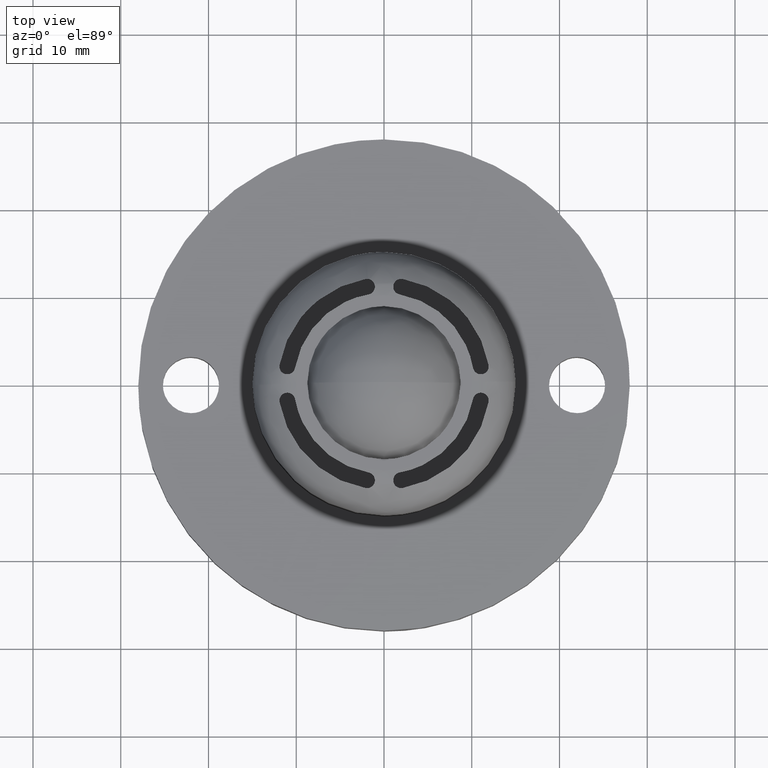
[diagram: clean part render]
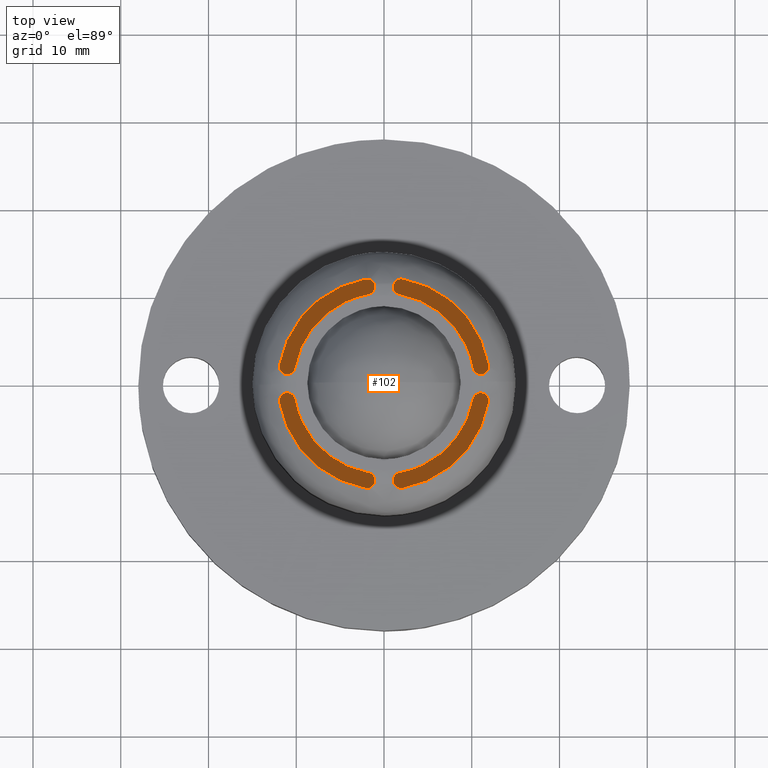
[diagram: same view with one face highlighted and labeled with its STEP entity id]
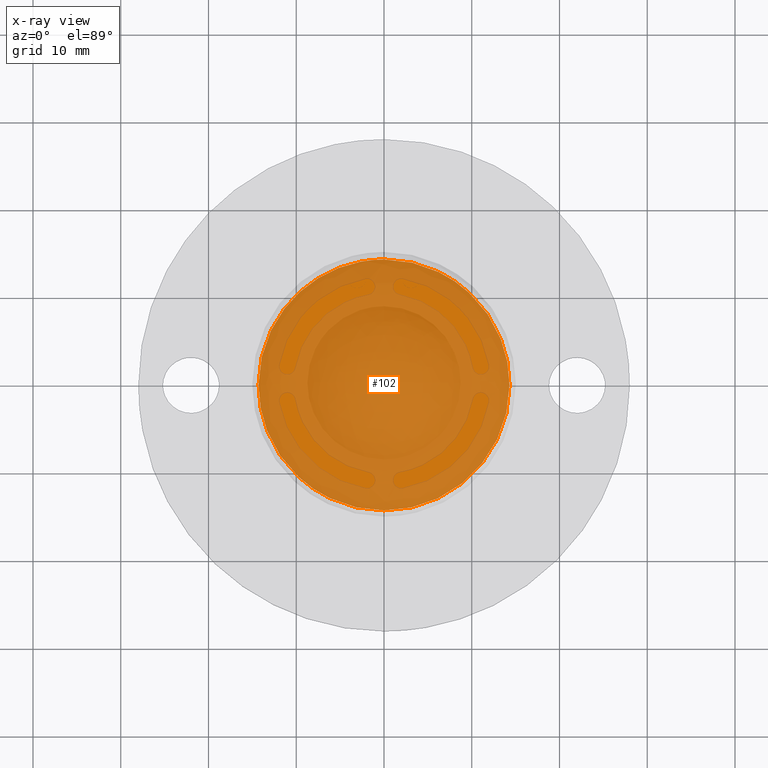
[diagram: x-ray of the same camera — body ghosted, the highlighted face saturated]
A machine part, top view. The second image highlights one B-rep face of the part: STEP entity #102.
The next image is the same camera in x-ray: the body ghosted, the highlighted face saturated — about 83% of this face is hidden behind the body in this view.
In plain terms, the highlighted face is a freeform B-spline surface patch.
Its self-contained STEP definition (entity closure, byte-faithful):
#5=CARTESIAN_POINT('',(15.728569944567321,-15.728569944567321,6.000000000000070));
#6=CARTESIAN_POINT('',(-15.728570711679099,-15.728569944567321,6.000000000000070));
#7=CARTESIAN_POINT('',(15.728569944567321,15.728570711679090,6.000000000000070));
#8=CARTESIAN_POINT('',(-15.728570711679099,15.728570711679090,6.000000000000070));
#9=B_SPLINE_SURFACE_WITH_KNOTS('',1,1,((#5,#7),(#6,#8)),.UNSPECIFIED.,.F.,.F.,.U.,(2,2),(2,2),(0.0,31.457140656246420),(0.0,31.457140656246409),.UNSPECIFIED.);
#10=CARTESIAN_POINT('',(-9.712347651176639,-10.495728028405139,6.000000000000091));
#11=VERTEX_POINT('',#10);
#12=CARTESIAN_POINT('',(-14.299999999999701,0.0,6.000000000000091));
#13=VERTEX_POINT('',#12);
#14=CARTESIAN_POINT('',(-9.712347651176639,-10.495728028405139,6.000000000000091));
#15=CARTESIAN_POINT('',(-10.162879421995070,-10.078847607861819,6.000000000000099));
#16=CARTESIAN_POINT('',(-11.031321590507240,-9.164649296583946,6.000000000000076));
#17=CARTESIAN_POINT('',(-12.296093052905681,-7.421959986089083,6.000000000000096));
#18=CARTESIAN_POINT('',(-13.322636842641661,-5.384981262749389,6.000000000000084));
#19=CARTESIAN_POINT('',(-14.104237542271520,-2.823481034652033,6.000000000000083));
#20=CARTESIAN_POINT('',(-14.300200717039470,-1.043503643734479,6.000000000000099));
#21=CARTESIAN_POINT('',(-14.299999999999701,0.0,6.000000000000091));
#22=B_SPLINE_CURVE_WITH_KNOTS('',3,(#14,#15,#16,#17,#18,#19,#20,#21),.UNSPECIFIED.,.F.,.U.,(4,1,1,1,1,4),(0.000000013052444,1.841444662456269,3.774979316731391,6.445075786953984,8.654819179867785,11.785286344685961),.UNSPECIFIED.);
#23=EDGE_CURVE('',#11,#13,#22,.T.);
#24=ORIENTED_EDGE('',*,*,#23,.F.);
#25=CARTESIAN_POINT('',(-0.000000525152832,-14.299999999999690,6.000000000000091));
#26=VERTEX_POINT('',#25);
#27=CARTESIAN_POINT('',(-0.000000525152832,-14.299999999999690,6.000000000000091));
#28=CARTESIAN_POINT('',(-0.917573282483773,-14.300101499111010,6.000000000000110));
#29=CARTESIAN_POINT('',(-2.446809392577613,-14.152292556962740,6.000000000000025));
#30=CARTESIAN_POINT('',(-4.414119998947976,-13.635923783584360,6.000000000000172));
#31=CARTESIAN_POINT('',(-6.073354379958099,-12.986016621188330,6.000000000000038));
#32=CARTESIAN_POINT('',(-7.863077314411433,-12.018007164946090,6.000000000000076));
#33=CARTESIAN_POINT('',(-9.079755808383320,-11.081219920251471,6.000000000000161));
#34=CARTESIAN_POINT('',(-9.712347651176639,-10.495728028405139,6.000000000000091));
#35=B_SPLINE_CURVE_WITH_KNOTS('',3,(#27,#28,#29,#30,#31,#32,#33,#34),.UNSPECIFIED.,.F.,.U.,(4,1,1,1,1,4),(0.000000010414404,2.752699450255091,4.587842957824215,6.089293252947494,8.091267545227501,10.677136200359151),.UNSPECIFIED.);
#36=EDGE_CURVE('',#26,#11,#35,.T.);
#37=ORIENTED_EDGE('',*,*,#36,.F.);
#38=CARTESIAN_POINT('',(14.299999999999701,0.0,6.000000000000091));
#39=VERTEX_POINT('',#38);
#40=CARTESIAN_POINT('',(14.299999999999701,0.0,6.000000000000091));
#41=CARTESIAN_POINT('',(14.300020251049871,-0.643449886064511,6.000000000000075));
#42=CARTESIAN_POINT('',(14.207072105615230,-2.018094110817895,6.000000000000109));
#43=CARTESIAN_POINT('',(13.714114829329640,-4.312471873056986,6.000000000000084));
#44=CARTESIAN_POINT('',(12.798455525810750,-6.542441901983058,6.000000000000067));
#45=CARTESIAN_POINT('',(11.700011249776949,-8.276785826671512,6.000000000000152));
#46=CARTESIAN_POINT('',(10.598405794812750,-9.644606837401920,6.000000000000117));
#47=CARTESIAN_POINT('',(9.433815966381193,-10.802086820986920,6.000000000000018));
#48=CARTESIAN_POINT('',(8.104540581581208,-11.813426340475640,6.000000000000121));
#49=CARTESIAN_POINT('',(6.753609590701603,-12.634434016744271,6.000000000000109));
#50=CARTESIAN_POINT('',(5.058317254134202,-13.436394448220019,6.000000000000228));
#51=CARTESIAN_POINT('',(2.749262229839114,-14.121316268966170,5.999999999999652));
#52=CARTESIAN_POINT('',(0.935940702007310,-14.300126043135171,6.000000000000436));
#53=CARTESIAN_POINT('',(-0.000000525152832,-14.299999999999690,6.000000000000091));
#54=B_SPLINE_CURVE_WITH_KNOTS('',3,(#40,#41,#42,#43,#44,#45,#46,#47,#48,#49,#50,#51,#52,#53),.UNSPECIFIED.,.F.,.U.,(4,1,1,1,1,1,1,1,1,1,1,4),(0.000000043469601,1.930352501267038,4.123956115908683,7.019515504626323,9.125366822881944,10.266051776653489,12.284130896196530,14.039011209367700,15.267426820802140,17.022305552835679,19.654623322496409,22.462423006119050),.UNSPECIFIED.);
#55=EDGE_CURVE('',#39,#26,#54,.T.);
#56=ORIENTED_EDGE('',*,*,#55,.F.);
#57=CARTESIAN_POINT('',(9.712347651176691,10.495728028405191,6.000000000000091));
#58=VERTEX_POINT('',#57);
#59=CARTESIAN_POINT('',(9.712347651176691,10.495728028405191,6.000000000000091));
#60=CARTESIAN_POINT('',(10.230474928603840,10.016328690882681,6.000000000000098));
#61=CARTESIAN_POINT('',(11.132550958017109,9.048111264606304,6.000000000000088));
#62=CARTESIAN_POINT('',(12.174516586901410,7.562587290762105,6.000000000000084));
#63=CARTESIAN_POINT('',(12.949329494124180,6.129909624823655,6.000000000000111));
#64=CARTESIAN_POINT('',(13.603018906640539,4.537604813820308,6.000000000000084));
#65=CARTESIAN_POINT('',(14.150527138210240,2.485931266530004,6.000000000000095));
#66=CARTESIAN_POINT('',(14.300085169431510,0.890036255439078,6.000000000000092));
#67=CARTESIAN_POINT('',(14.299999999999701,0.0,6.000000000000091));
#68=B_SPLINE_CURVE_WITH_KNOTS('',3,(#59,#60,#61,#62,#63,#64,#65,#66,#67),.UNSPECIFIED.,.F.,.U.,(4,1,1,1,1,1,4),(0.000000013052748,2.117663875192770,3.959122260484900,5.432293735658004,6.997510296963787,9.115184009026478,11.785286344685989),.UNSPECIFIED.);
#69=EDGE_CURVE('',#58,#39,#68,.T.);
#70=ORIENTED_EDGE('',*,*,#69,.F.);
#71=CARTESIAN_POINT('',(0.000000525153124,14.299999999999690,6.000000000000091));
#72=VERTEX_POINT('',#71);
#73=CARTESIAN_POINT('',(0.000000525153124,14.299999999999690,6.000000000000091));
#74=CARTESIAN_POINT('',(0.750736739628179,14.300048481155439,6.000000000000098));
#75=CARTESIAN_POINT('',(2.113169660685956,14.192455994764710,6.000000000000069));
#76=CARTESIAN_POINT('',(4.097353014082248,13.745303215111321,6.000000000000092));
#77=CARTESIAN_POINT('',(5.847872276893430,13.094722565745830,6.000000000000133));
#78=CARTESIAN_POINT('',(7.792667299649753,12.064697016130189,6.000000000000014));
#79=CARTESIAN_POINT('',(9.018562885570155,11.137920920930560,6.000000000000130));
#80=CARTESIAN_POINT('',(9.712347651176691,10.495728028405191,6.000000000000091));
#81=B_SPLINE_CURVE_WITH_KNOTS('',3,(#73,#74,#75,#76,#77,#78,#79,#80),.UNSPECIFIED.,.F.,.U.,(4,1,1,1,1,4),(0.000000010415725,2.252206048876529,4.087345557603253,6.089293252947401,7.841021205751505,10.677136200358900),.UNSPECIFIED.);
#82=EDGE_CURVE('',#72,#58,#81,.T.);
#83=ORIENTED_EDGE('',*,*,#82,.F.);
#84=CARTESIAN_POINT('',(-14.299999999999701,0.0,6.000000000000091));
#85=CARTESIAN_POINT('',(-14.300099892406999,0.877438812498670,6.000000000000100));
#86=CARTESIAN_POINT('',(-14.159547658026280,2.398288601428360,6.000000000000087));
#87=CARTESIAN_POINT('',(-13.561238533635510,4.726450166630754,6.000000000000108));
#88=CARTESIAN_POINT('',(-12.692639889262550,6.718866256936191,6.000000000000067));
#89=CARTESIAN_POINT('',(-11.441633513489609,8.667768068607090,6.000000000000090));
#90=CARTESIAN_POINT('',(-9.853117926576989,10.475587786226191,6.000000000000148));
#91=CARTESIAN_POINT('',(-7.934127355219138,11.982646874757300,6.000000000000076));
#92=CARTESIAN_POINT('',(-5.997848466105453,13.025121645295769,6.000000000000087));
#93=CARTESIAN_POINT('',(-4.355841919533587,13.652728025899849,6.000000000000100));
#94=CARTESIAN_POINT('',(-2.398282028073090,14.155891111635199,6.000000000000076));
#95=CARTESIAN_POINT('',(-0.935942485249157,14.300123250522130,6.000000000000120));
#96=CARTESIAN_POINT('',(0.000000525153124,14.299999999999690,6.000000000000091));
#97=B_SPLINE_CURVE_WITH_KNOTS('',3,(#84,#85,#86,#87,#88,#89,#90,#91,#92,#93,#94,#95,#96),.UNSPECIFIED.,.F.,.U.,(4,1,1,1,1,1,1,1,1,1,4),(0.000000043442796,2.632300666145902,4.562674342584632,7.195001203803839,9.125366822865004,11.494442143606820,14.389975671391120,16.408096000791900,18.075238154048620,19.654623322493229,22.462423006119359),.UNSPECIFIED.);
#98=EDGE_CURVE('',#13,#72,#97,.T.);
#99=ORIENTED_EDGE('',*,*,#98,.F.);
#100=EDGE_LOOP('',(#24,#37,#56,#70,#83,#99));
#101=FACE_OUTER_BOUND('',#100,.T.);
#102=ADVANCED_FACE('',(#101),#9,.F.);